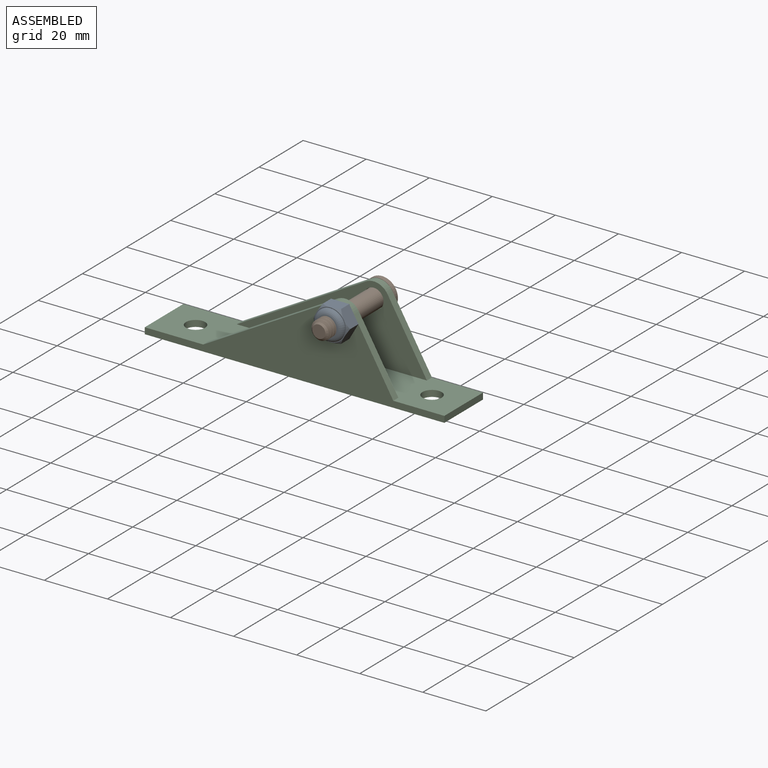
[diagram: assembled view]
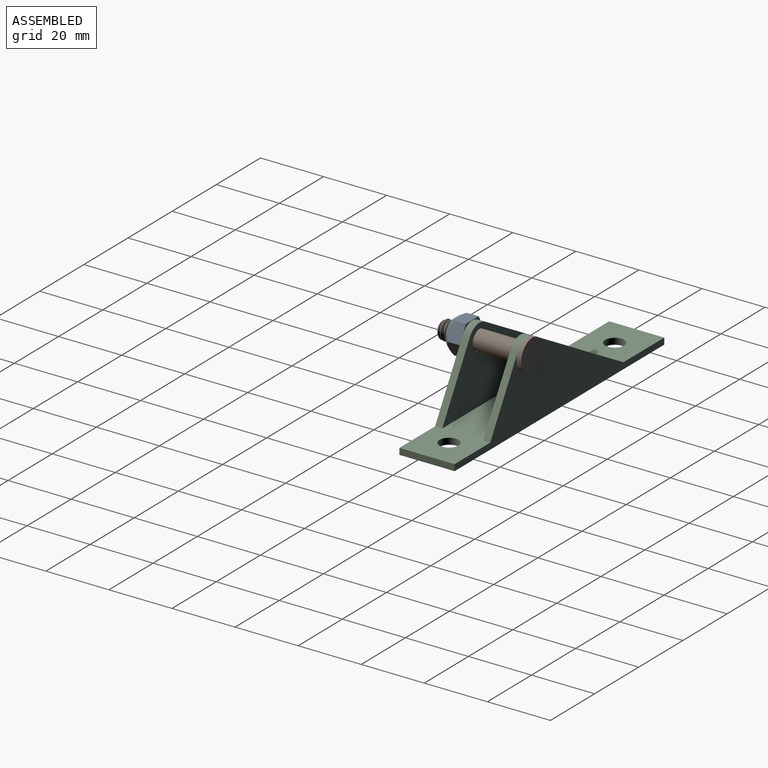
[diagram: assembled view, second angle]
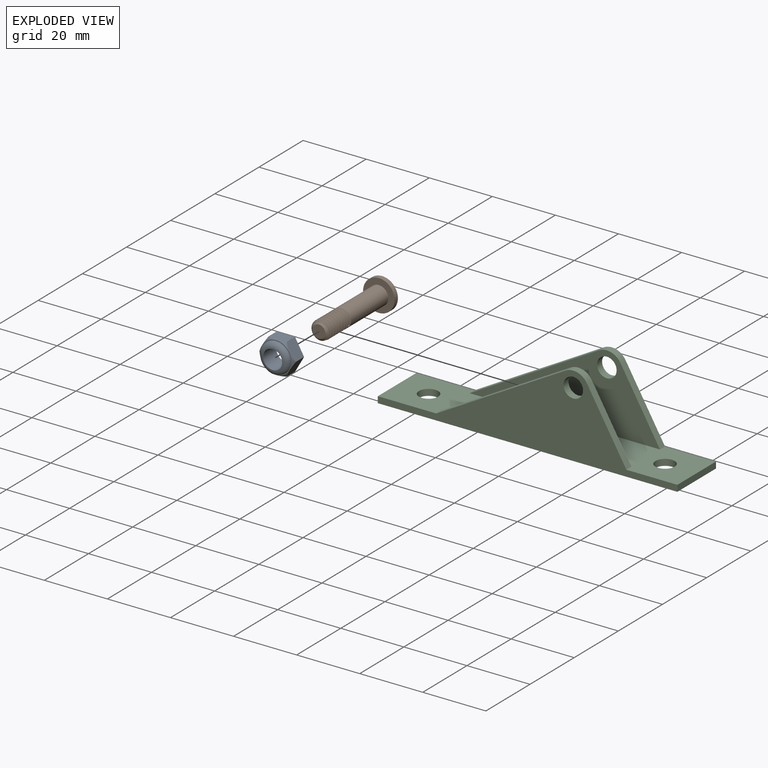
[diagram: exploded view]
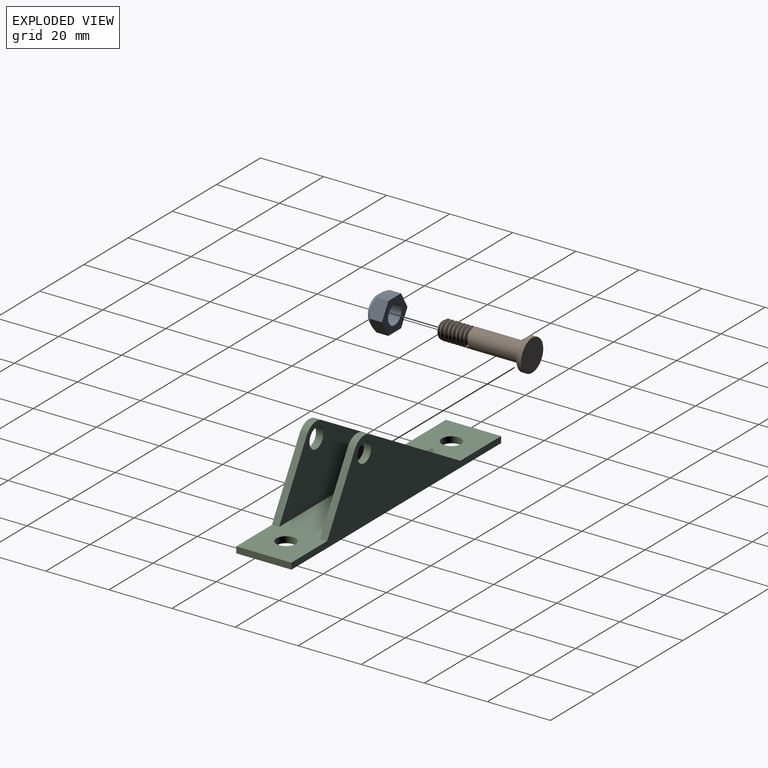
[diagram: exploded view, second angle]
ASSEMBLY  parts=3 mates=2
PART A: 16 faces, bbox 12.1x6.6x12.1 mm
  f0: plane 10x10mm, normal (0,-1,0), area 7.7mm2, adj f9,f10,f11,f12,f13,f14,f15
  f1: plane 5.56x5.07mm, normal (0.87,0,-0.5), area 24.4mm2, adj f2,f6,f7,f10,f15
  f2: plane 6.34x5.07mm, normal (0,0,-1), area 24.4mm2, adj f1,f3,f7,f14,f15
  f3: plane 5.56x5.07mm, normal (-0.87,0,-0.5), area 24.4mm2, adj f2,f4,f7,f13,f14
  f4: plane 5.56x5.07mm, normal (-0.87,0,0.5), area 24.4mm2, adj f3,f5,f7,f12,f13
  f5: plane 6.34x5.07mm, normal (0,0,1), area 24.4mm2, adj f4,f6,f7,f11,f12
  f6: plane 5.56x5.07mm, normal (0.87,0,0.5), area 24.4mm2, adj f1,f5,f7,f10,f11
  f7: plane 11.55x10mm, normal (0,1,0), area 58.1mm2, adj f1,f2,f3,f4,f5,f6,f8
  f8: cylinder r=3.01mm len=6.02mm, axis (0,1,0), area 113.5mm2, adj f7,f9
  f9: torus R=3.01mm, axis (0,1,0), area 63.9mm2, adj f0,f8
  f10: cone r=5mm half-angle=45deg, axis (0,1,0), area 3mm2, adj f0,f1,f6
  f11: cone r=5mm half-angle=45deg, axis (0,1,0), area 3mm2, adj f0,f5,f6
  f12: cone r=5mm half-angle=45deg, axis (0,1,0), area 3mm2, adj f0,f4,f5
  f13: cone r=5mm half-angle=45deg, axis (0,1,0), area 3mm2, adj f0,f3,f4
  f14: cone r=5mm half-angle=45deg, axis (0,1,0), area 3mm2, adj f0,f2,f3
  f15: cone r=5mm half-angle=45deg, axis (0,1,0), area 3mm2, adj f0,f1,f2
PART B: 17 faces, bbox 10x29.2x10 mm
  f0: cylinder r=3mm len=18.73mm, axis (0,1,0), area 329.2mm2, adj f1,f9,f10,f13,f14
  f1: cylinder r=3mm len=6mm, axis (0,1,0), area 2.9mm2, adj f0,f2,f9,f10
  f2: cylinder r=3mm len=6mm, axis (0,1,0), area 2.9mm2, adj f1,f3,f9,f10
  f3: cylinder r=3mm len=6mm, axis (0,1,0), area 2.9mm2, adj f2,f4,f9,f10
  f4: cylinder r=3mm len=6mm, axis (0,1,0), area 2.9mm2, adj f3,f5,f9,f10
  f5: cylinder r=3mm len=6mm, axis (0,1,0), area 2.9mm2, adj f4,f6,f9,f10
  f6: cylinder r=3mm len=6mm, axis (0,1,0), area 3mm2, adj f5,f7,f9,f10,f15
  f7: cylinder r=3mm len=2.01mm, axis (0,1,0), area 0.2mm2, adj f6,f9,f15
  f8: bspline ~9.97x4.37mm, area 16.8mm2, adj f9,f10,f14,f15
  f9: bspline ~10.3x6.14mm, area 111.9mm2, adj f0,f1,f2,f3,f4,f5,f6,f7
  f10: bspline ~10.46x6.14mm, area 118mm2, adj f0,f1,f2,f3,f4,f5,f6,f8
  f11: plane 10x10mm, normal (0,1,0), area 78.5mm2, adj f12
  f12: cylinder r=5mm len=10mm, axis (0,1,0), area 47.1mm2, adj f11,f13
  f13: plane 10x10mm, normal (0,-1,0), area 50.3mm2, adj f0,f12
  f14: plane 1.09x0.7mm, normal (0.51,0,0.86), area 0.5mm2, adj f0,f8,f9,f10
  f15: cone r=2.05mm half-angle=45deg, axis (0,1,0), area 11.5mm2, adj f6,f7,f8,f9,f10,f16
  f16: plane 4.11x4.11mm, normal (0,-1,0), area 13.2mm2, adj f15
PART C: 18 faces, bbox 95x17.5x25.9 mm
  f0: plane 95x17.5mm, normal (0,0,1), area 1328.3mm2, adj f2,f3,f4,f5,f6,f7,f8,f10
  f1: plane 95x17.5mm, normal (0,0,-1), area 1604.1mm2, adj f2,f3,f4,f5,f6,f7
  f2: plane 17.5x2mm, normal (-1,0,0), area 35mm2, adj f0,f1,f3,f5
  f3: plane 95x25.91mm, normal (0,-1,0), area 929.3mm2, adj f0,f1,f2,f4,f8,f9,f10,f12
  f4: plane 17.5x2mm, normal (1,0,0), area 35mm2, adj f0,f1,f3,f5
  f5: plane 95x25.91mm, normal (0,1,0), area 929.3mm2, adj f0,f1,f2,f4,f14,f15,f16,f17
  f6: cylinder r=3.05mm len=6.1mm, axis (0,0,-1), area 38.3mm2, adj f0,f1
  f7: cylinder r=3.05mm len=6.1mm, axis (0,0,-1), area 38.3mm2, adj f0,f1
  f8: plane 41.01x23.26mm, normal (-0.49,0,0.87), area 107.8mm2, adj f0,f3,f9,f11
  f9: cylinder r=5mm len=6.78mm, axis (0,-1,0), area 17.8mm2, adj f3,f8,f10,f11
  f10: plane 21.43x12.51mm, normal (0.86,0,0.5), area 56.7mm2, adj f0,f3,f9,f11
  f11: plane 60.31x23.91mm, normal (0,1,0), area 739.3mm2, adj f0,f8,f9,f10,f12
  f12: cylinder r=3.1mm len=6.2mm, axis (0,-1,0), area 44.5mm2, adj f3,f11
  f13: plane 60.31x23.91mm, normal (0,-1,0), area 739.3mm2, adj f0,f14,f15,f16,f17
  f14: plane 21.43x12.51mm, normal (0.86,0,0.5), area 56.7mm2, adj f0,f5,f13,f15
  f15: cylinder r=5mm len=6.78mm, axis (0,1,0), area 17.8mm2, adj f5,f13,f14,f16
  f16: plane 41.01x23.26mm, normal (-0.49,0,0.87), area 107.8mm2, adj f0,f5,f13,f15
  f17: cylinder r=3.1mm len=6.2mm, axis (0,1,0), area 44.5mm2, adj f5,f13
PLACE A t=(-41.51,-14.6,-25.34)mm
PLACE B t=(-41.51,-15.6,-25.34)mm
PLACE C t=(-41.51,-15.1,-25.34)mm
MATE cylindrical C.f12 <-> B.f0  axis (0,1,0) through (-41.51,-6.35,-4.34)mm
MATE cylindrical C.f12 <-> A.f8  axis (0,-1,0) through (-41.51,-23.85,-4.34)mm
